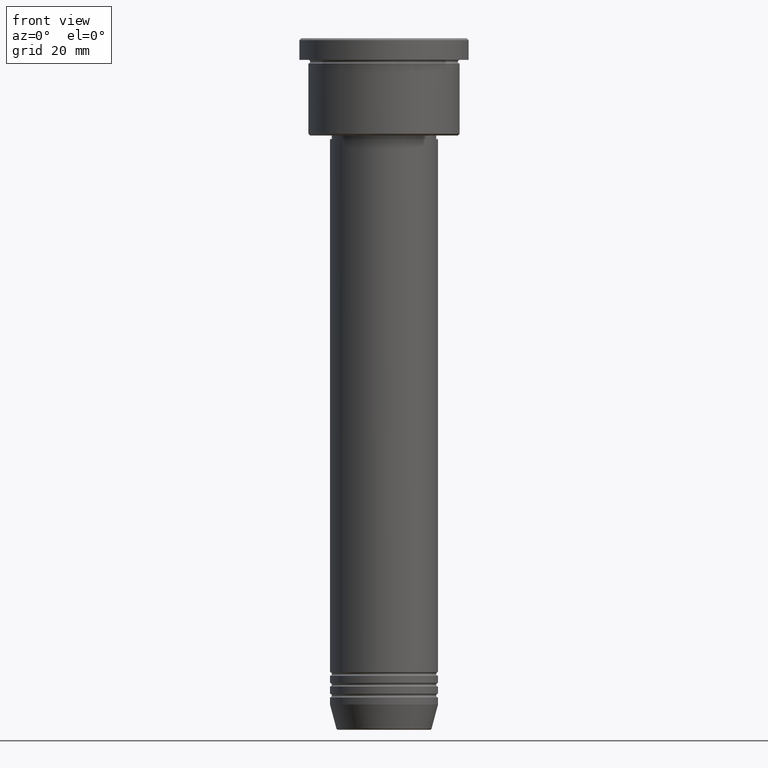
[diagram: clean part render]
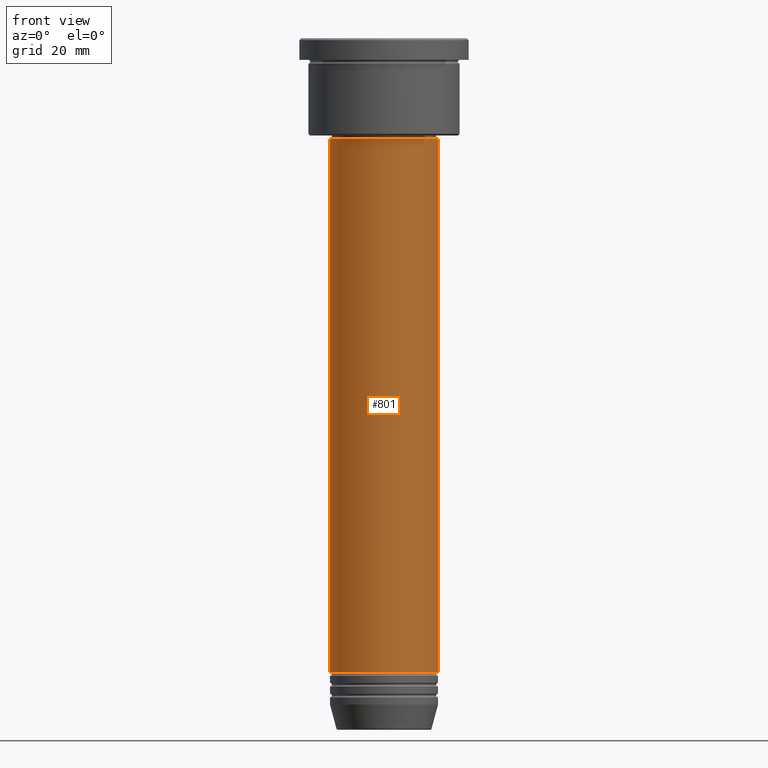
[diagram: same view with one face highlighted and labeled with its STEP entity id]
A machine part, front view. The second image highlights one B-rep face of the part: STEP entity #801.
In plain terms, the highlighted cylindrical surface (partial cylindrical patch) has radius 15 mm, axis along (-0, -0, 1).
Its self-contained STEP definition (entity closure, byte-faithful):
#69 = EDGE_CURVE ( 'NONE', #691, #878, #812, .T. ) ;
#83 = DIRECTION ( 'NONE',  ( 1.000000000000000000, 0.000000000000000000, 0.000000000000000000 ) ) ;
#84 = CIRCLE ( 'NONE', #750, 15.00000000000000000 ) ;
#92 = ORIENTED_EDGE ( 'NONE', *, *, #903, .F. ) ;
#101 = DIRECTION ( 'NONE',  ( 1.000000000000000000, 0.000000000000000000, 0.000000000000000000 ) ) ;
#107 = VERTEX_POINT ( 'NONE', #472 ) ;
#110 = LINE ( 'NONE', #193, #1132 ) ;
#119 = CARTESIAN_POINT ( 'NONE',  ( 15.00000000000000000, 0.000000000000000000, -28.00000000000000355 ) ) ;
#163 = CARTESIAN_POINT ( 'NONE',  ( 0.000000000000000000, 0.000000000000000000, 0.000000000000000000 ) ) ;
#193 = CARTESIAN_POINT ( 'NONE',  ( -15.00000000000000000, 1.836970198721029589E-15, 0.000000000000000000 ) ) ;
#369 = ORIENTED_EDGE ( 'NONE', *, *, #69, .T. ) ;
#376 = AXIS2_PLACEMENT_3D ( 'NONE', #1012, #655, #101 ) ;
#455 = CYLINDRICAL_SURFACE ( 'NONE', #705, 15.00000000000000000 ) ;
#472 = CARTESIAN_POINT ( 'NONE',  ( -15.00000000000000000, 1.836970198721029589E-15, -176.0000000000000000 ) ) ;
#476 = EDGE_LOOP ( 'NONE', ( #92, #967, #369, #639 ) ) ;
#508 = EDGE_CURVE ( 'NONE', #1018, #878, #608, .T. ) ;
#515 = DIRECTION ( 'NONE',  ( -0.000000000000000000, -0.000000000000000000, 1.000000000000000000 ) ) ;
#580 = CARTESIAN_POINT ( 'NONE',  ( 0.000000000000000000, 0.000000000000000000, -176.0000000000000000 ) ) ;
#608 = CIRCLE ( 'NONE', #376, 15.00000000000000000 ) ;
#639 = ORIENTED_EDGE ( 'NONE', *, *, #508, .F. ) ;
#641 = DIRECTION ( 'NONE',  ( -0.000000000000000000, -0.000000000000000000, 1.000000000000000000 ) ) ;
#655 = DIRECTION ( 'NONE',  ( -0.000000000000000000, -0.000000000000000000, 1.000000000000000000 ) ) ;
#691 = VERTEX_POINT ( 'NONE', #850 ) ;
#702 = DIRECTION ( 'NONE',  ( -0.000000000000000000, -0.000000000000000000, 1.000000000000000000 ) ) ;
#705 = AXIS2_PLACEMENT_3D ( 'NONE', #163, #702, #83 ) ;
#727 = VECTOR ( 'NONE', #641, 1000.000000000000000 ) ;
#750 = AXIS2_PLACEMENT_3D ( 'NONE', #580, #515, #938 ) ;
#756 = CARTESIAN_POINT ( 'NONE',  ( -15.00000000000000000, 1.836970198721029589E-15, -28.00000000000000355 ) ) ;
#801 = ADVANCED_FACE ( 'NONE', ( #1062 ), #455, .T. ) ;
#812 = LINE ( 'NONE', #1182, #727 ) ;
#850 = CARTESIAN_POINT ( 'NONE',  ( 15.00000000000000000, 0.000000000000000000, -176.0000000000000000 ) ) ;
#878 = VERTEX_POINT ( 'NONE', #119 ) ;
#903 = EDGE_CURVE ( 'NONE', #107, #1018, #110, .T. ) ;
#938 = DIRECTION ( 'NONE',  ( 1.000000000000000000, 0.000000000000000000, 0.000000000000000000 ) ) ;
#967 = ORIENTED_EDGE ( 'NONE', *, *, #1146, .T. ) ;
#1012 = CARTESIAN_POINT ( 'NONE',  ( 0.000000000000000000, 0.000000000000000000, -28.00000000000000355 ) ) ;
#1017 = DIRECTION ( 'NONE',  ( -0.000000000000000000, -0.000000000000000000, 1.000000000000000000 ) ) ;
#1018 = VERTEX_POINT ( 'NONE', #756 ) ;
#1062 = FACE_OUTER_BOUND ( 'NONE', #476, .T. ) ;
#1132 = VECTOR ( 'NONE', #1017, 1000.000000000000000 ) ;
#1146 = EDGE_CURVE ( 'NONE', #107, #691, #84, .T. ) ;
#1182 = CARTESIAN_POINT ( 'NONE',  ( 15.00000000000000000, 0.000000000000000000, 0.000000000000000000 ) ) ;